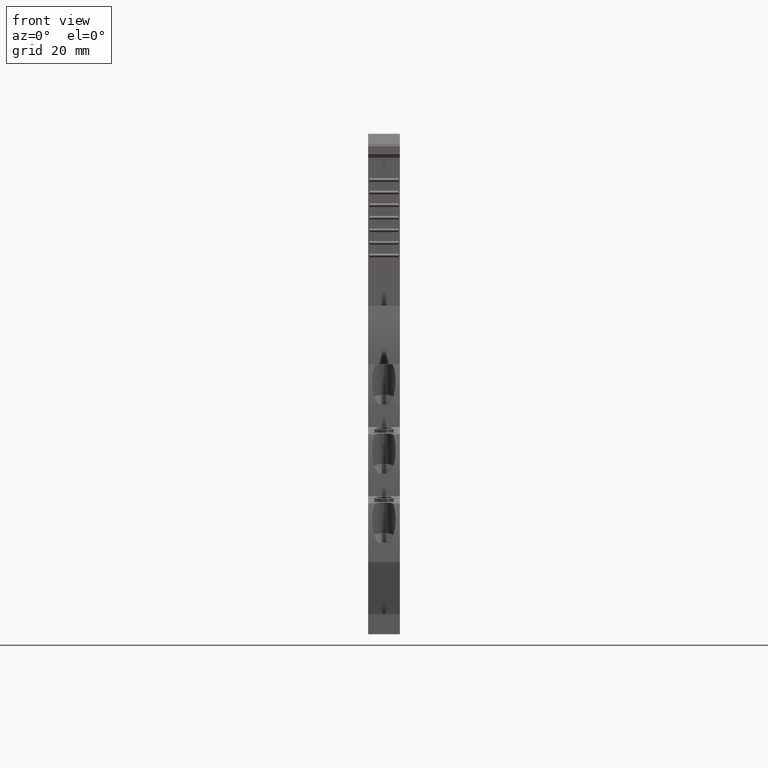
[diagram: clean part render]
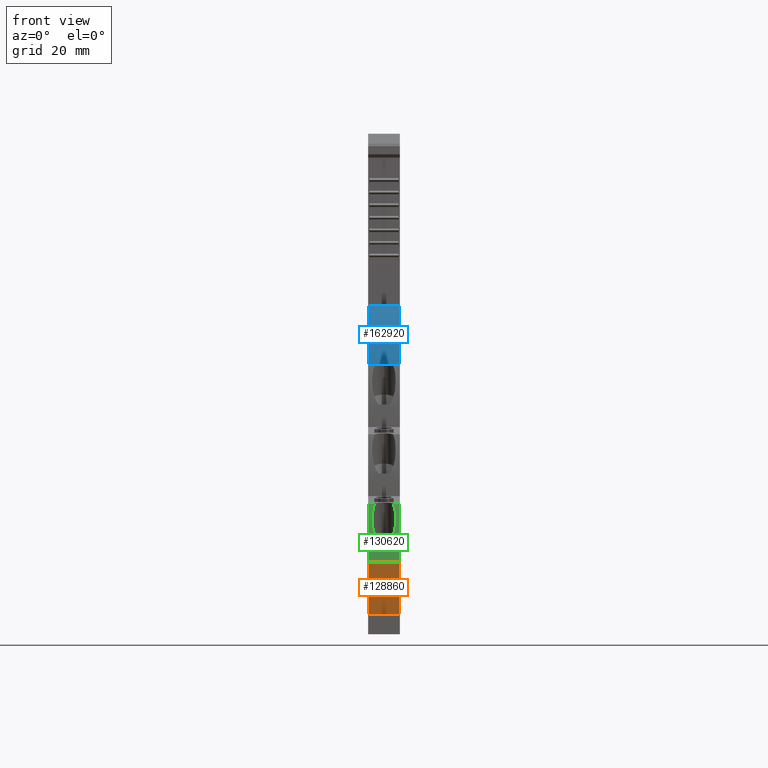
[diagram: same view with three faces highlighted in distinct colors, each labeled with its STEP entity id]
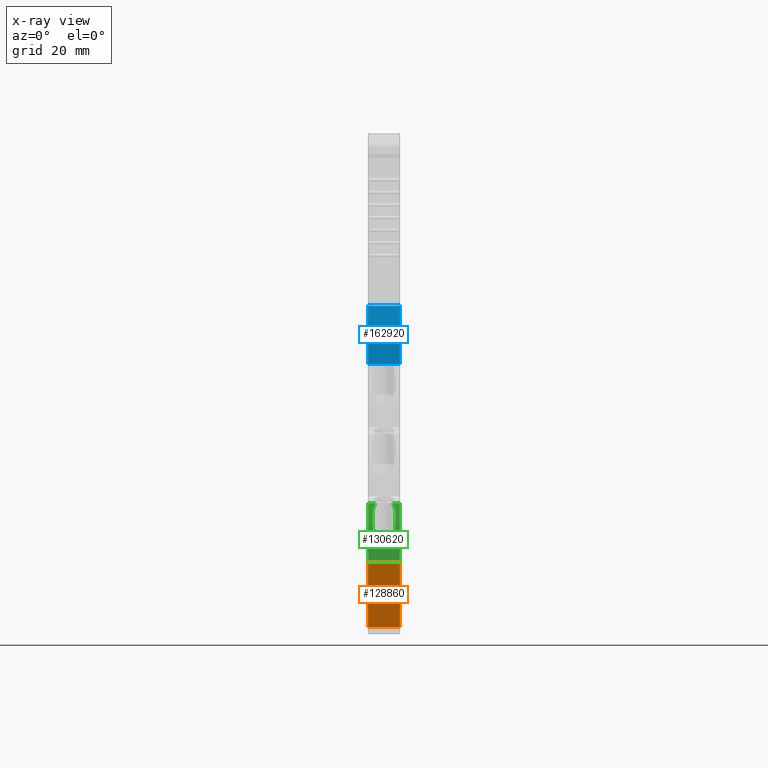
[diagram: x-ray of the same camera — body ghosted, the three highlighted faces saturated]
A machine part, front view with three faces highlighted in distinct colors.
The next image is the same camera in x-ray (body ghosted, the three faces saturated) — at least one of them is partly hidden behind the body in this view.
Their STEP definitions:

[orange] entity #128860 — the highlighted planar face has unit normal (0, 0.9397, 0.342).
#22270=CARTESIAN_POINT('',(-70.9642513612114,-5.64003599414861,
6.29999995433454));
#22280=VERTEX_POINT('',#22270);
#22310=CARTESIAN_POINT('',(-75.5674404601186,7.00712014452282,
6.29999994847774));
#22320=DIRECTION('',(0.342020190322415,-0.93969260368049,
4.35164062651257E-10));
#22330=VECTOR('',#22320,1.);
#22340=LINE('',#22310,#22330);
#22350=CARTESIAN_POINT('',(-75.6892600077674,7.34181654885329,
6.29999994832275));
#22360=VERTEX_POINT('',#22350);
#22370=EDGE_CURVE('',#22360,#22280,#22340,.T.);
#111200=CARTESIAN_POINT('',(-75.6892600077674,7.34181655580547,
8.10186490216067E-9));
#111210=VERTEX_POINT('',#111200);
#111240=CARTESIAN_POINT('',(-70.9642513595698,-5.64003604622177,
-6.22391583925778E-9));
#111250=DIRECTION('',(-0.342020190322416,0.93969260368049,
1.03697294953359E-9));
#111260=VECTOR('',#111250,1.);
#111270=LINE('',#111240,#111260);
#111280=CARTESIAN_POINT('',(-70.9642513420488,-5.64003603984532,
-6.22391601331976E-9));
#111290=VERTEX_POINT('',#111280);
#111300=EDGE_CURVE('',#111290,#111210,#111270,.T.);
#128520=CARTESIAN_POINT('',(-70.9642513595695,-5.64003605317522,
6.29999995404818));
#128530=DIRECTION('',(0.,1.10352348766613E-9,-1.));
#128540=VECTOR('',#128530,1.);
#128550=LINE('',#128520,#128540);
#128560=EDGE_CURVE('',#22280,#111290,#128550,.T.);
#128700=CARTESIAN_POINT('',(-75.5674404259081,7.00712005748266,
7.73251918715785E-9));
#128710=DIRECTION('',(0.939692603680491,0.342020190322413,
3.77427350633464E-10));
#128720=DIRECTION('',(-0.342020190322413,0.939692603680491,
1.03697294953359E-9));
#128730=AXIS2_PLACEMENT_3D('',#128700,#128710,#128720);
#128740=PLANE('',#128730);
#128750=ORIENTED_EDGE('',*,*,#111300,.F.);
#128760=CARTESIAN_POINT('',(-75.6892600077674,7.34181655580547,
8.10186466641882E-9));
#128770=DIRECTION('',(-4.25831752161686E-18,-1.10352358519E-9,1.));
#128780=VECTOR('',#128770,1.);
#128790=LINE('',#128760,#128780);
#128800=EDGE_CURVE('',#111210,#22360,#128790,.T.);
#128810=ORIENTED_EDGE('',*,*,#128800,.F.);
#128820=ORIENTED_EDGE('',*,*,#22370,.F.);
#128830=ORIENTED_EDGE('',*,*,#128560,.F.);
#128840=EDGE_LOOP('',(#128830,#128820,#128810,#128750));
#128850=FACE_OUTER_BOUND('',#128840,.T.);
#128860=ADVANCED_FACE('',(#128850),#128740,.F.);

[blue] entity #162920 — the highlighted cylindrical surface (partial cylindrical patch) has radius 50 mm, axis along (1, -0, -0).
#15420=CARTESIAN_POINT('',(-37.9106962853079,58.2109657956473,
6.42371707720073E-8));
#15430=VERTEX_POINT('',#15420);
#15760=CARTESIAN_POINT('',(-37.9106962853079,58.2109657886951,
6.29999999638972));
#15770=VERTEX_POINT('',#15760);
#15800=CARTESIAN_POINT('',(-37.9106962853077,58.2109657956473,
6.42371707720072E-8));
#15810=DIRECTION('',(4.25831752161686E-18,1.10352358519E-9,-1.));
#15820=VECTOR('',#15810,1.);
#15830=LINE('',#15800,#15820);
#15840=EDGE_CURVE('',#15770,#15430,#15830,.T.);
#23180=CARTESIAN_POINT('',(-39.2892358904795,46.5999999999267,
6.29999999463575));
#23190=VERTEX_POINT('',#23180);
#23220=CARTESIAN_POINT('',(10.7107400521603,46.5509517028742,
6.30000005825244));
#23230=DIRECTION('',(-4.25831752161686E-18,-1.10352358519E-9,1.));
#23240=DIRECTION('',(1.,0.,4.25831752161686E-18));
#23250=AXIS2_PLACEMENT_3D('',#23220,#23230,#23240);
#23260=CIRCLE('',#23250,50.);
#23270=EDGE_CURVE('',#15770,#23190,#23260,.T.);
#110320=CARTESIAN_POINT('',(10.7107400521603,46.5509517098264,
5.13700704317019E-8));
#110330=DIRECTION('',(4.25831752161686E-18,1.10352358519E-9,-1.));
#110340=DIRECTION('',(1.,0.,4.25831752161686E-18));
#110350=AXIS2_PLACEMENT_3D('',#110320,#110330,#110340);
#110360=CIRCLE('',#110350,50.);
#110370=CARTESIAN_POINT('',(-39.2892358904795,46.6000000068789,
5.1424196171397E-8));
#110380=VERTEX_POINT('',#110370);
#110390=EDGE_CURVE('',#110380,#15430,#110360,.T.);
#162320=CARTESIAN_POINT('',(-39.2892358904795,46.6000000068789,
5.14241961713968E-8));
#162330=DIRECTION('',(4.25831752161686E-18,1.10352358519E-9,-1.));
#162340=VECTOR('',#162330,1.);
#162350=LINE('',#162320,#162340);
#162360=EDGE_CURVE('',#23190,#110380,#162350,.T.);
#162810=CARTESIAN_POINT('',(10.7107400521603,46.5509517098264,
5.13700704317017E-8));
#162820=DIRECTION('',(-4.25831752161686E-18,-1.10352358519E-9,1.));
#162830=DIRECTION('',(1.,0.,4.25831752161686E-18));
#162840=AXIS2_PLACEMENT_3D('',#162810,#162820,#162830);
#162850=CYLINDRICAL_SURFACE('',#162840,50.);
#162860=ORIENTED_EDGE('',*,*,#15840,.T.);
#162870=ORIENTED_EDGE('',*,*,#23270,.F.);
#162880=ORIENTED_EDGE('',*,*,#162360,.F.);
#162890=ORIENTED_EDGE('',*,*,#110390,.F.);
#162900=EDGE_LOOP('',(#162890,#162880,#162870,#162860));
#162910=FACE_OUTER_BOUND('',#162900,.T.);
#162920=ADVANCED_FACE('',(#162910),#162850,.T.);

[green] entity #130620 — the highlighted cylindrical surface (partial cylindrical patch) has radius 50 mm, axis along (1, -0, -0).
#22350=CARTESIAN_POINT('',(-75.6892600077674,7.34181654885329,
6.29999994832275));
#22360=VERTEX_POINT('',#22350);
#22390=CARTESIAN_POINT('',(-25.6892608432084,7.3509567951589,
6.30000001193947));
#22400=DIRECTION('',(-4.25831752161686E-18,-1.10352358519E-9,1.));
#22410=DIRECTION('',(1.,0.,4.25831752161686E-18));
#22420=AXIS2_PLACEMENT_3D('',#22390,#22400,#22410);
#22430=CIRCLE('',#22420,50.);
#22440=CARTESIAN_POINT('',(-74.3193258147242,18.9749311957742,
6.29999995006576));
#22450=VERTEX_POINT('',#22440);
#22460=EDGE_CURVE('',#22450,#22360,#22430,.T.);
#111110=CARTESIAN_POINT('',(-74.3193258147242,18.9749312027264,
2.09392807915855E-8));
#111120=VERTEX_POINT('',#111110);
#111150=CARTESIAN_POINT('',(-25.6892608432084,7.3509568021111,
8.11195135670744E-9));
#111160=DIRECTION('',(4.25831752161686E-18,1.10352358519E-9,-1.));
#111170=DIRECTION('',(1.,0.,4.25831752161686E-18));
#111180=AXIS2_PLACEMENT_3D('',#111150,#111160,#111170);
#111190=CIRCLE('',#111180,50.);
#111200=CARTESIAN_POINT('',(-75.6892600077674,7.34181655580547,
8.10186490216067E-9));
#111210=VERTEX_POINT('',#111200);
#111220=EDGE_CURVE('',#111210,#111120,#111190,.T.);
#128760=CARTESIAN_POINT('',(-75.6892600077674,7.34181655580547,
8.10186466641882E-9));
#128770=DIRECTION('',(-4.25831752161686E-18,-1.10352358519E-9,1.));
#128780=VECTOR('',#128770,1.);
#128790=LINE('',#128760,#128780);
#128800=EDGE_CURVE('',#111210,#22360,#128790,.T.);
#129160=CARTESIAN_POINT('',(-25.6892608432084,7.3509568021111,
8.1119513567074E-9));
#129170=DIRECTION('',(-4.25831752161686E-18,-1.10352358519E-9,1.));
#129180=DIRECTION('',(1.,0.,4.25831752161686E-18));
#129190=AXIS2_PLACEMENT_3D('',#129160,#129170,#129180);
#129200=CYLINDRICAL_SURFACE('',#129190,50.);
#129210=CARTESIAN_POINT('',(-74.3193258147241,18.9749312027264,
2.09392810543489E-8));
#129220=DIRECTION('',(4.25831752161686E-18,1.10352358519E-9,-1.));
#129230=VECTOR('',#129220,1.);
#129240=LINE('',#129210,#129230);
#129250=CARTESIAN_POINT('',(-74.3193258147241,18.9749311972818,
4.93382135178197));
#129260=VERTEX_POINT('',#129250);
#129270=EDGE_CURVE('',#22450,#129260,#129240,.T.);
#129280=ORIENTED_EDGE('',*,*,#129270,.T.);
#129290=ORIENTED_EDGE('',*,*,#22460,.F.);
#129300=ORIENTED_EDGE('',*,*,#128800,.T.);
#129310=ORIENTED_EDGE('',*,*,#111220,.F.);
#129320=CARTESIAN_POINT('',(-74.3193258147241,18.9749312027264,
2.09392810543489E-8));
#129330=DIRECTION('',(-4.25831752161686E-18,-1.10352358519E-9,1.));
#129340=VECTOR('',#129330,1.);
#129350=LINE('',#129320,#129340);
#129360=CARTESIAN_POINT('',(-74.3193258147241,18.9749312012188,
1.36617883447937));
#129370=VERTEX_POINT('',#129360);
#129380=EDGE_CURVE('',#111120,#129370,#129350,.T.);
#129390=ORIENTED_EDGE('',*,*,#129380,.F.);
#129400=CARTESIAN_POINT('',(-73.3502891599546,12.8862953987751,
3.25000009477781));
#129410=DIRECTION('',(-0.390731082790663,0.920504872850349,
-3.83954258107071E-10));
#129420=DIRECTION('',(0.920504872850349,0.390731082790663,
2.34054219565957E-9));
#129430=AXIS2_PLACEMENT_3D('',#129400,#129410,#129420);
#129440=CYLINDRICAL_SURFACE('',#129430,2.4);
#129450=CARTESIAN_POINT('',(-74.3193258147241,18.9749312012188,
1.36617883447938));
#129460=CARTESIAN_POINT('',(-74.3661564309368,18.779010612496,
1.27172375835702));
#129470=CARTESIAN_POINT('',(-74.4136599381641,18.5749653596178,
1.19269416294129));
#129480=CARTESIAN_POINT('',(-74.4606227584663,18.367047619798,
1.12706102346685));
#129490=CARTESIAN_POINT('',(-74.5076447799283,18.1588677796349,
1.06134514709655));
#129500=CARTESIAN_POINT('',(-74.5538777282034,17.9479734698591,
1.00931596261798));
#129510=CARTESIAN_POINT('',(-74.5991610380827,17.7346778550498,
0.968500243556047));
#129520=CARTESIAN_POINT('',(-74.644471068055,17.5212563819786,
0.92766044056973));
#129530=CARTESIAN_POINT('',(-74.6888658028935,17.3052304071477,
0.898117016993952));
#129540=CARTESIAN_POINT('',(-74.731909120294,17.088443641701,
0.878711480312538));
#129550=CARTESIAN_POINT('',(-74.7749394695595,16.8717221899946,
0.859311790151231));
#129560=CARTESIAN_POINT('',(-74.8166899253116,16.6539072407242,
0.850000124152053));
#129570=CARTESIAN_POINT('',(-74.8569822333658,16.4358438835673,
0.850000093297325));
#129580=B_SPLINE_CURVE_WITH_KNOTS('',3,(#129450,#129460,#129470,#129480,
#129490,#129500,#129510,#129520,#129530,#129540,#129550,#129560,#129570)
,.UNSPECIFIED.,.F.,.F.,(4,3,3,3,4),(0.,0.668877723269136,
1.33574371167076,2.00182190864596,2.66713641997068),.UNSPECIFIED.);
#129590=SURFACE_CURVE('',#129580,(#129200,#129440),.CURVE_3D.);
#129600=CARTESIAN_POINT('',(-74.8569822334137,16.4358438835762,
0.850000093296727));
#129610=VERTEX_POINT('',#129600);
#129620=EDGE_CURVE('',#129370,#129610,#129590,.T.);
#129630=ORIENTED_EDGE('',*,*,#129620,.F.);
#129640=CARTESIAN_POINT('',(-25.6892608432084,7.3509568011731,
0.850000201508021));
#129650=DIRECTION('',(-4.80635114721284E-18,-1.10352358508874E-9,1.));
#129660=DIRECTION('',(-0.983354431765362,0.18169772020425,
2.00507714875897E-10));
#129670=AXIS2_PLACEMENT_3D('',#129640,#129650,#129660);
#129680=CIRCLE('',#129670,50.);
#129690=CARTESIAN_POINT('',(-75.0459903284602,15.3455333703028,
0.85000009226412));
#129700=VERTEX_POINT('',#129690);
#129710=EDGE_CURVE('',#129610,#129700,#129680,.T.);
#129720=ORIENTED_EDGE('',*,*,#129710,.F.);
#129730=CARTESIAN_POINT('',(-74.8724914016064,14.9367966715155,
3.25000009243987));
#129740=DIRECTION('',(0.390731082786406,-0.920504872852155,
3.83880413603435E-10));
#129750=DIRECTION('',(-0.920504872852155,-0.390731082786406,
-2.34722746002397E-9));
#129760=AXIS2_PLACEMENT_3D('',#129730,#129740,#129750);
#129770=CYLINDRICAL_SURFACE('',#129760,2.40000000000534);
#129780=CARTESIAN_POINT('',(-75.5454068804513,11.1410362595154,
2.0927142138744));
#129790=CARTESIAN_POINT('',(-75.5236272572245,11.4275337033759,
1.85291321485585));
#129800=CARTESIAN_POINT('',(-75.4957705832345,11.7584586697193,
1.66473538218953));
#129810=CARTESIAN_POINT('',(-75.4636650599083,12.0952886683219,
1.51137536741172));
#129820=CARTESIAN_POINT('',(-75.43133349706,12.4344901246687,
1.3569356186548));
#129830=CARTESIAN_POINT('',(-75.3938585341806,12.790076552254,
1.23445197327613));
#129840=CARTESIAN_POINT('',(-75.3518741911497,13.1496493649497,
1.13780116135219));
#129850=CARTESIAN_POINT('',(-75.3099060085857,13.5090837721326,
1.04118755192163));
#129860=CARTESIAN_POINT('',(-75.2634071150151,13.8733388006765,
0.970221764508899));
#129870=CARTESIAN_POINT('',(-75.2123227284451,14.2405389009401,
0.922354967914579));
#129880=CARTESIAN_POINT('',(-75.1612867108312,14.6073913199124,
0.874533493719796));
#129890=CARTESIAN_POINT('',(-75.1056905714808,14.9769574089002,
0.850000131740688));
#129900=CARTESIAN_POINT('',(-75.0459903284602,15.3455333703028,
0.85000009226412));
#129910=B_SPLINE_CURVE_WITH_KNOTS('',3,(#129780,#129790,#129800,#129810,
#129820,#129830,#129840,#129850,#129860,#129870,#129880,#129890,#129900)
,.UNSPECIFIED.,.F.,.F.,(4,3,3,3,4),(0.,1.12379322630038,2.2492408917036,
3.3707663061537,4.49134235264291),.UNSPECIFIED.);
#129920=SURFACE_CURVE('',#129910,(#129770,#129200),.CURVE_3D.);
#129930=CARTESIAN_POINT('',(-75.545406880507,11.1410362590682,
2.09271421333675));
#129940=VERTEX_POINT('',#129930);
#129950=EDGE_CURVE('',#129940,#129700,#129920,.T.);
#129960=ORIENTED_EDGE('',*,*,#129950,.T.);
#129970=CARTESIAN_POINT('',(-75.5454068802367,11.1410362649337,
1.22943932213731E-8));
#129980=DIRECTION('',(4.25831752161686E-18,1.10352358519E-9,-1.));
#129990=VECTOR('',#129980,1.);
#130000=LINE('',#129970,#129990);
#130010=CARTESIAN_POINT('',(-75.5454068805417,11.1410362562789,
4.20728596981708));
#130020=VERTEX_POINT('',#130010);
#130030=EDGE_CURVE('',#130020,#129940,#130000,.T.);
#130040=ORIENTED_EDGE('',*,*,#130030,.T.);
#130050=CARTESIAN_POINT('',(-74.8724914011453,14.9367966716274,
3.05000009211796));
#130060=DIRECTION('',(0.390731082786406,-0.920504872852155,
3.8790817920332E-10));
#130070=DIRECTION('',(-0.920504872852155,-0.390731082786406,
-2.3333461952119E-9));
#130080=AXIS2_PLACEMENT_3D('',#130050,#130060,#130070);
#130090=CYLINDRICAL_SURFACE('',#130080,2.40000000000534);
#130100=CARTESIAN_POINT('',(-75.0459900437086,15.3455351232188,
5.45000009195101));
#130110=CARTESIAN_POINT('',(-75.1056967899891,14.9769190953279,
5.45000013119619));
#130120=CARTESIAN_POINT('',(-75.1612867007571,14.6073928431795,
5.42546805257509));
#130130=CARTESIAN_POINT('',(-75.2123264598061,14.240512074545,
5.37764172004674));
#130140=CARTESIAN_POINT('',(-75.2633928162702,13.8734401200536,
5.32979046465748));
#130150=CARTESIAN_POINT('',(-75.3099712854612,13.5085189858044,
5.2586561890934));
#130160=CARTESIAN_POINT('',(-75.3518635410605,13.1497405719401,
5.16222353958707));
#130170=CARTESIAN_POINT('',(-75.3938110099106,12.7904892944807,
5.06566379355664));
#130180=CARTESIAN_POINT('',(-75.4313141653321,12.434689500766,
4.94315157835481));
#130190=CARTESIAN_POINT('',(-75.4636605230951,12.0953362617193,
4.78864648803874));
#130200=CARTESIAN_POINT('',(-75.4957914435504,11.7582432260847,
4.63517045208888));
#130210=CARTESIAN_POINT('',(-75.523608758986,11.4277770334018,
4.44729064205558));
#130220=CARTESIAN_POINT('',(-75.5454068805723,11.1410362554879,
4.2072859692869));
#130230=B_SPLINE_CURVE_WITH_KNOTS('',3,(#130100,#130110,#130120,#130130,
#130140,#130150,#130160,#130170,#130180,#130190,#130200,#130210,#130220)
,.UNSPECIFIED.,.F.,.F.,(4,3,3,3,4),(0.,1.12060513224305,2.2420081914562,
3.36749841023654,4.49134414621578),.UNSPECIFIED.);
#130240=SURFACE_CURVE('',#130230,(#129200,#130090),.CURVE_3D.);
#130250=CARTESIAN_POINT('',(-75.0459900437086,15.3455351232188,
5.45000009195101));
#130260=VERTEX_POINT('',#130250);
#130270=EDGE_CURVE('',#130260,#130020,#130240,.T.);
#130280=ORIENTED_EDGE('',*,*,#130270,.T.);
#130290=CARTESIAN_POINT('',(-25.6892608432084,7.3509567960969,
5.450000201303));
#130300=DIRECTION('',(9.14599996178806E-18,1.10352358439832E-9,-1.));
#130310=DIRECTION('',(-0.98713458688529,0.15989154879107,
1.76444086008587E-10));
#130320=AXIS2_PLACEMENT_3D('',#130290,#130300,#130310);
#130330=CIRCLE('',#130320,50.);
#130340=CARTESIAN_POINT('',(-74.8569826326723,16.4358417176899,
5.45000009300873));
#130350=VERTEX_POINT('',#130340);
#130360=EDGE_CURVE('',#130260,#130350,#130330,.T.);
#130370=ORIENTED_EDGE('',*,*,#130360,.F.);
#130380=CARTESIAN_POINT('',(-73.3502891594936,12.8862953988871,
3.0500000945042));
#130390=DIRECTION('',(-0.390731082790663,0.920504872850349,
-3.87834404964313E-10));
#130400=DIRECTION('',(0.920504872850349,0.390731082790663,
2.34003155988996E-9));
#130410=AXIS2_PLACEMENT_3D('',#130380,#130390,#130400);
#130420=CYLINDRICAL_SURFACE('',#130410,2.4);
#130430=CARTESIAN_POINT('',(-74.856982632626,16.4358417176813,
5.4500000930086));
#130440=CARTESIAN_POINT('',(-74.8166991012404,16.65385762883,
5.45000012387812));
#130450=CARTESIAN_POINT('',(-74.7749584574819,16.8716236127234,
5.44069322277711));
#130460=CARTESIAN_POINT('',(-74.7319343488713,17.0883165726321,
5.42130007884706));
#130470=CARTESIAN_POINT('',(-74.6889639363356,17.3047390897182,
5.40193113845636));
#130480=CARTESIAN_POINT('',(-74.6445491818822,17.5209026268299,
5.37243183333506));
#130490=CARTESIAN_POINT('',(-74.5990212768724,17.7353361383742,
5.33137393678762));
#130500=CARTESIAN_POINT('',(-74.5535145437564,17.9496699316574,
5.29033513344078));
#130510=CARTESIAN_POINT('',(-74.5069716519494,18.1618929585135,
5.23780696994726));
#130520=CARTESIAN_POINT('',(-74.460105671062,18.3693366581356,
5.17221599052711));
#130530=CARTESIAN_POINT('',(-74.4132194255334,18.5768700554887,
5.1065966498598));
#130540=CARTESIAN_POINT('',(-74.3660897731368,18.7792894779892,
5.02814198233923));
#130550=CARTESIAN_POINT('',(-74.3193258147321,18.9749311972822,
4.93382135179411));
#130560=B_SPLINE_CURVE_WITH_KNOTS('',3,(#130430,#130440,#130450,#130460,
#130470,#130480,#130490,#130500,#130510,#130520,#130530,#130540,#130550)
,.UNSPECIFIED.,.F.,.F.,(4,3,3,3,4),(0.,0.665186665762449,
1.33207956467235,2.00071652983484,2.66713860689853),.UNSPECIFIED.);
#130570=SURFACE_CURVE('',#130560,(#129200,#130420),.CURVE_3D.);
#130580=EDGE_CURVE('',#130350,#129260,#130570,.T.);
#130590=ORIENTED_EDGE('',*,*,#130580,.F.);
#130600=EDGE_LOOP('',(#130590,#130370,#130280,#130040,#129960,#129720,
#129630,#129390,#129310,#129300,#129290,#129280));
#130610=FACE_OUTER_BOUND('',#130600,.T.);
#130620=ADVANCED_FACE('',(#130610),#129200,.T.);